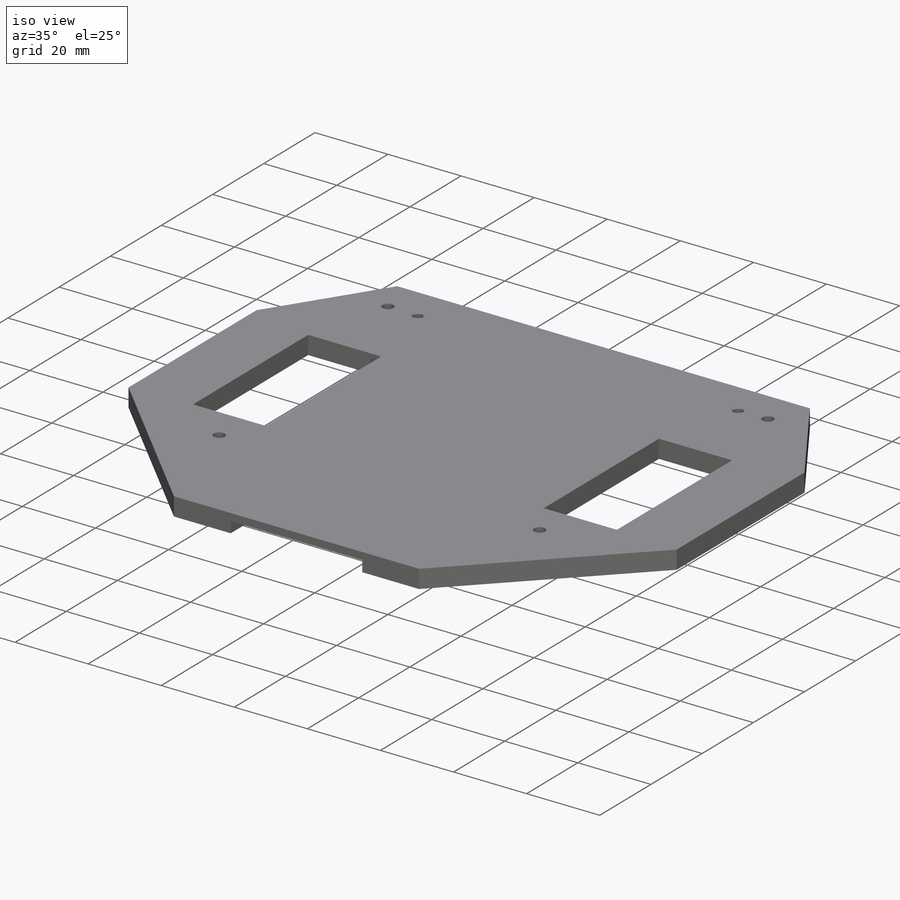
[diagram: iso view]
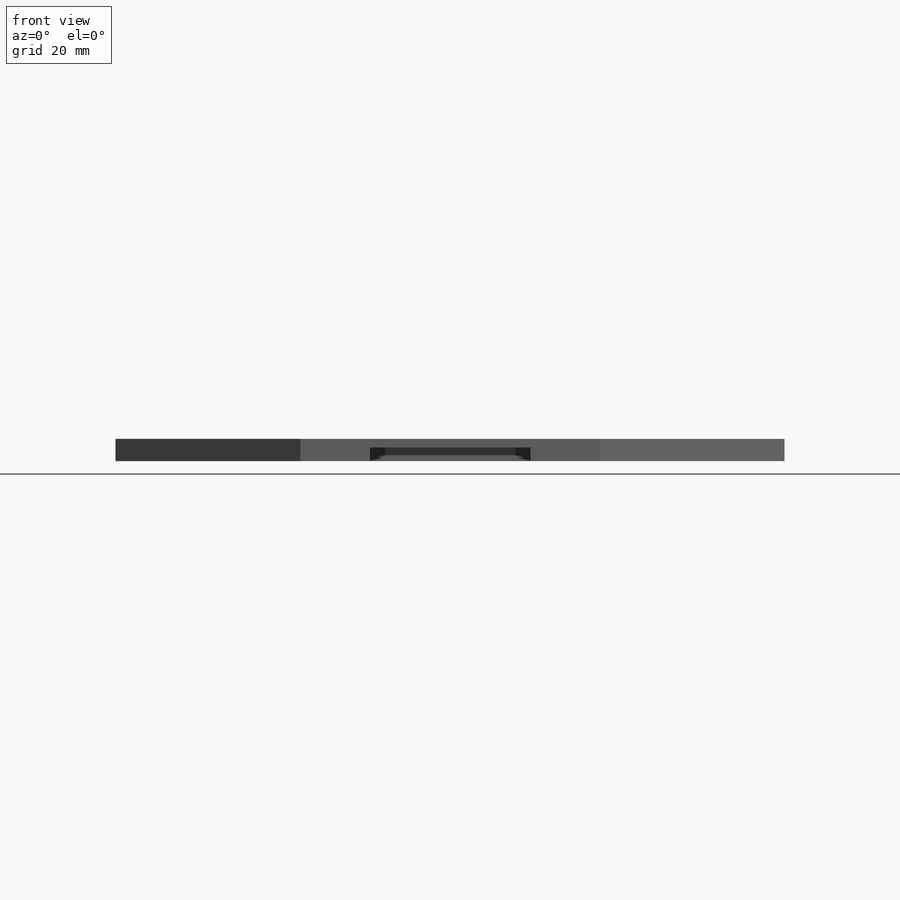
[diagram: front view]
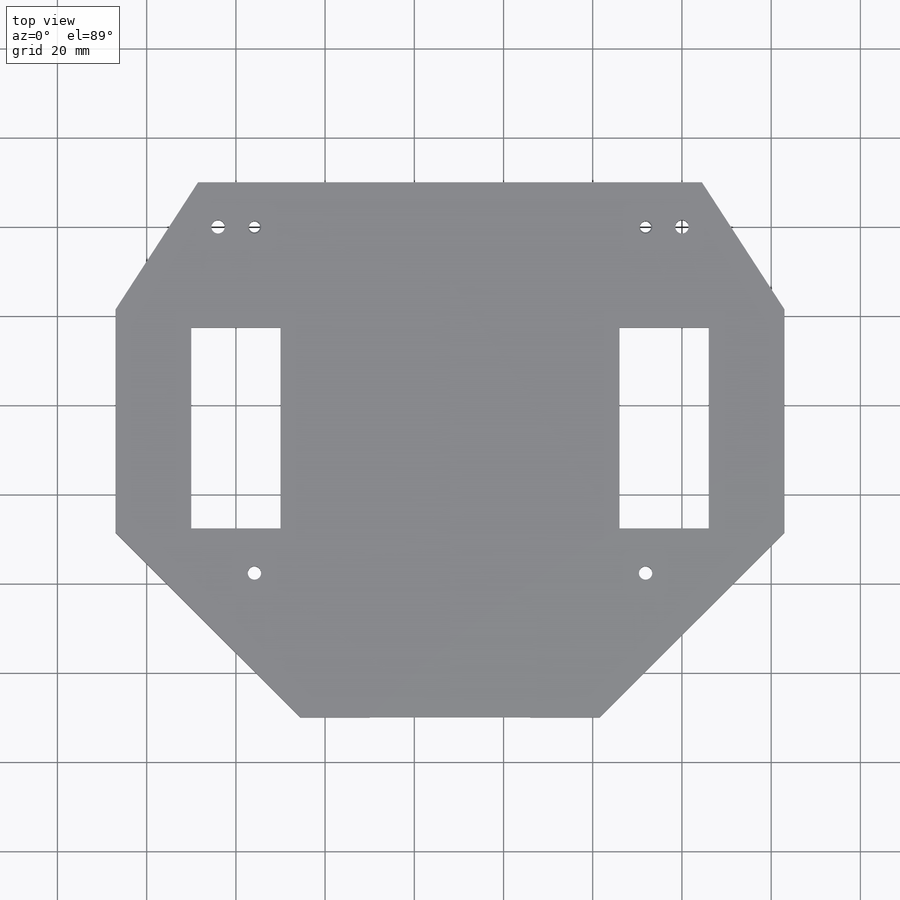
[diagram: top view]
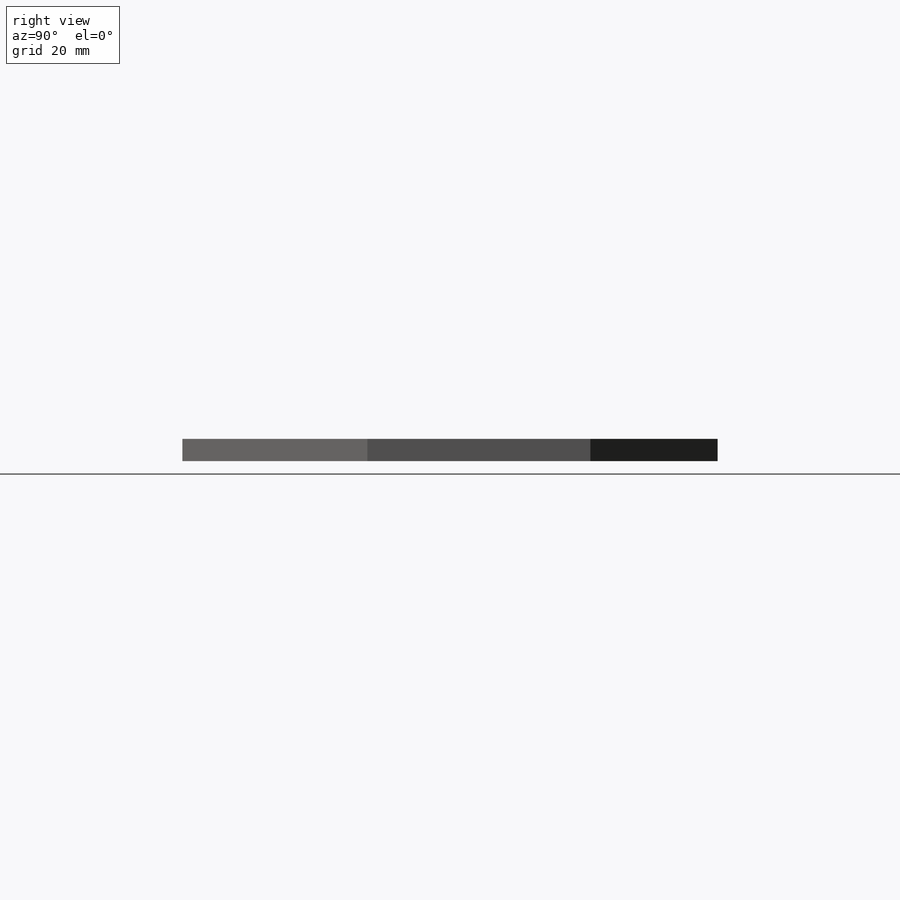
[diagram: right view]
SOLIDWORKS PART (.sldprt)
format: sldprt  version: not decoded by parser v0  size: 304,128 bytes
history: native  units: mm
features: sketch x8, hole x2, cut_extrude x2, thread x2, material x1, extrude x1, plane x1, mirror x1 (+11 scaffold rows collapsed)
feature tree (29):
  scaffold x11  (default folders/planes/origin — collapsed)
  material  "PMMA"
  sketch  "Sketch3"  dims[c1.D1=150.0mm c1.D2=150.0mm c1.D3=23.0mm c1.D4=55.0mm c1.D5=104.0mm c2.D2=10.0mm c2.D4=120.0mm c2.D5=~77.128371mm c3.D5=135.0deg c3.D6=150.0mm c4.D6=135.0deg c4.D5=~54.537994mm c5.D5=135.0deg c5.D6=~77.130126mm c6.D6=135.0deg c6.D7=~29.250366mm c7.D7=33.0deg c7.D8=~40.932495mm c8.D8=33.0deg c8.D2=10.0mm c8.D3=23.0mm c8.D9=50.0mm]
  extrude  "Boss-Extrude1"  Depth=5mm
  hole  "Ø3.0 (3) Diameter Hole1"  Diameter=3mm Depth=6mm
  sketch  "Sketch5"
  sketch  "Sketch4"  dims[hole-wizard template sketch: 49 standard entries collapsed; hole parameters kept: c15.Drill Angle=118.0deg]
  sketch  "Sketch6"  dims[D1=124.0mm D2=36.0mm D3=57.0mm D4=3.0mm]
  cut_extrude  "Cut-Extrude1"  Depth=3mm
  sketch  "Sketch9"  dims[c1.D1=45.0mm c1.D2=10.0mm c1.D3=20.0mm c1.D4=20.0mm c2.D2=10.0mm]
  cut_extrude  "Cut-Extrude3"  [1 undecoded]
  plane  "Plane2"
  mirror  "Mirror1"
  sketch  "Sketch10"
  hole  "M3x0.5 Tapped Hole1"  Diameter=2.5mm Depth=5mm
  sketch  "Sketch12"
  sketch  "Sketch11"  dims[hole-wizard template sketch: 54 standard entries collapsed; hole parameters kept: c17.Thru Tap Drill Dia.=2.5mm c17.Thru Tap Drill Depth=5.0mm c17.Near C'Sink Dia.=3.05mm c17.D4=~3.666174mm c17.Near C'Sink Angle=90.0deg]
  thread  "Hole Thread1"  Diameter=3mm  [1 undecoded]
  thread  "Hole Thread2"  Diameter=3mm  [1 undecoded]
decode coverage: 11 of 16 modeling features carry decoded parameters
note: ~ marks probable driven/reference dimensions
note: 3 parameter values undecoded
note: suppression state not decoded; provenance and decode notes live in map.json
